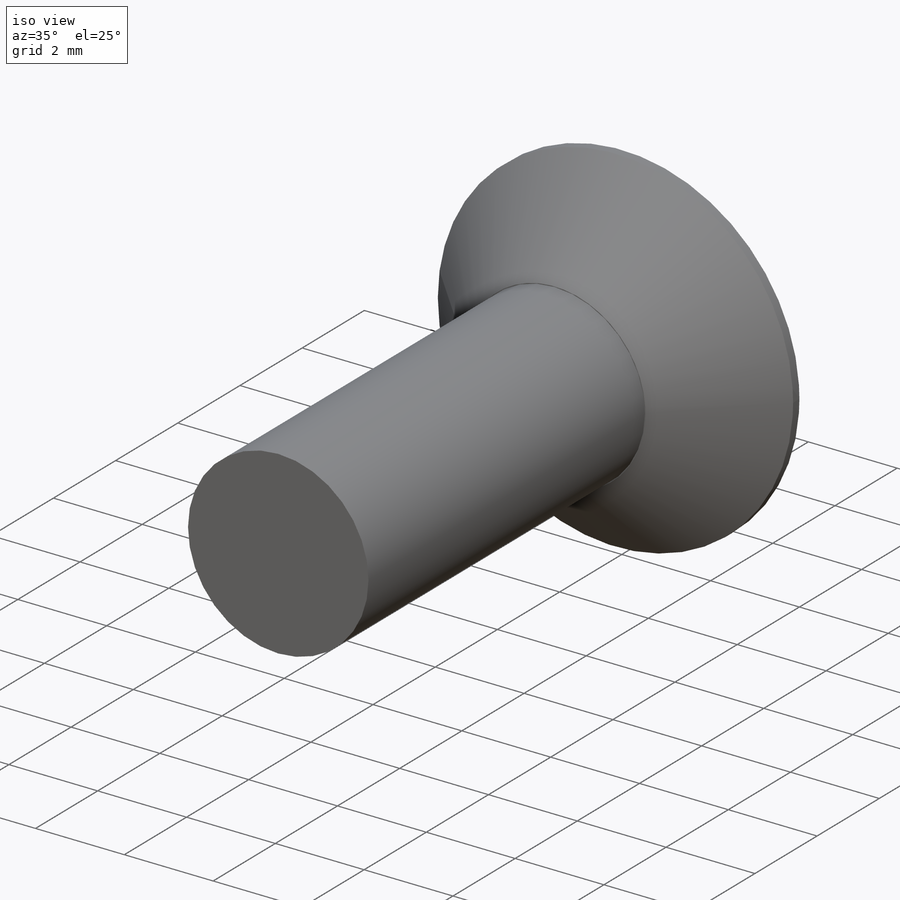
[diagram: iso view]
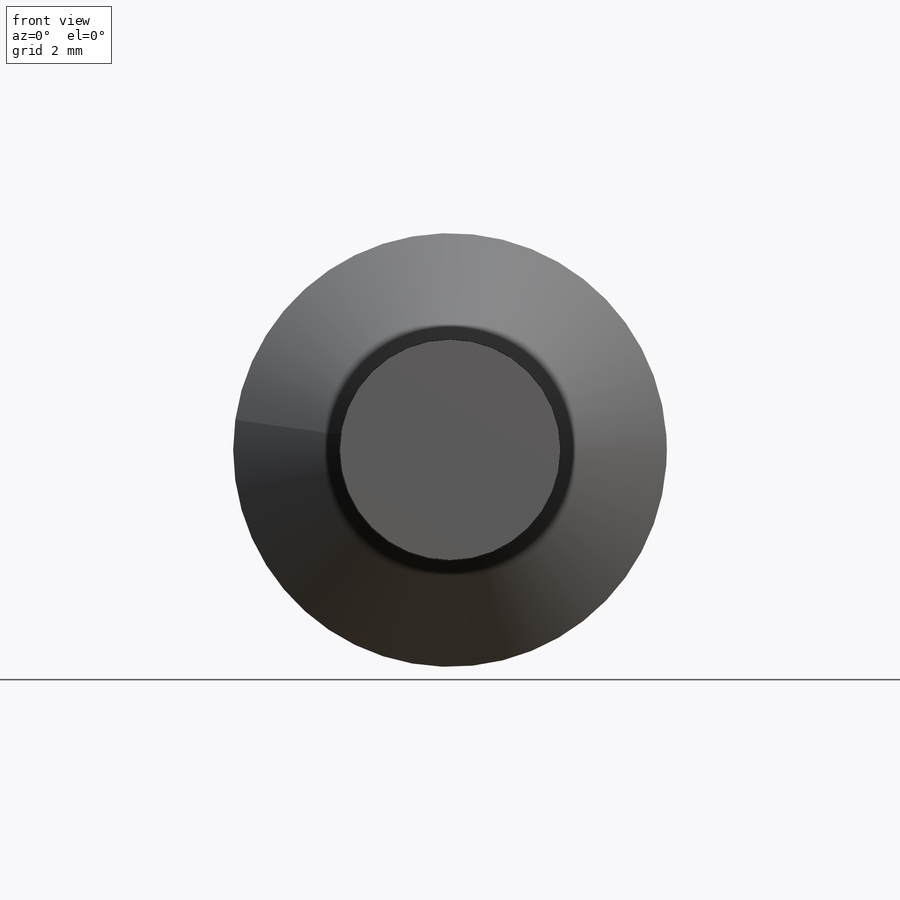
[diagram: front view]
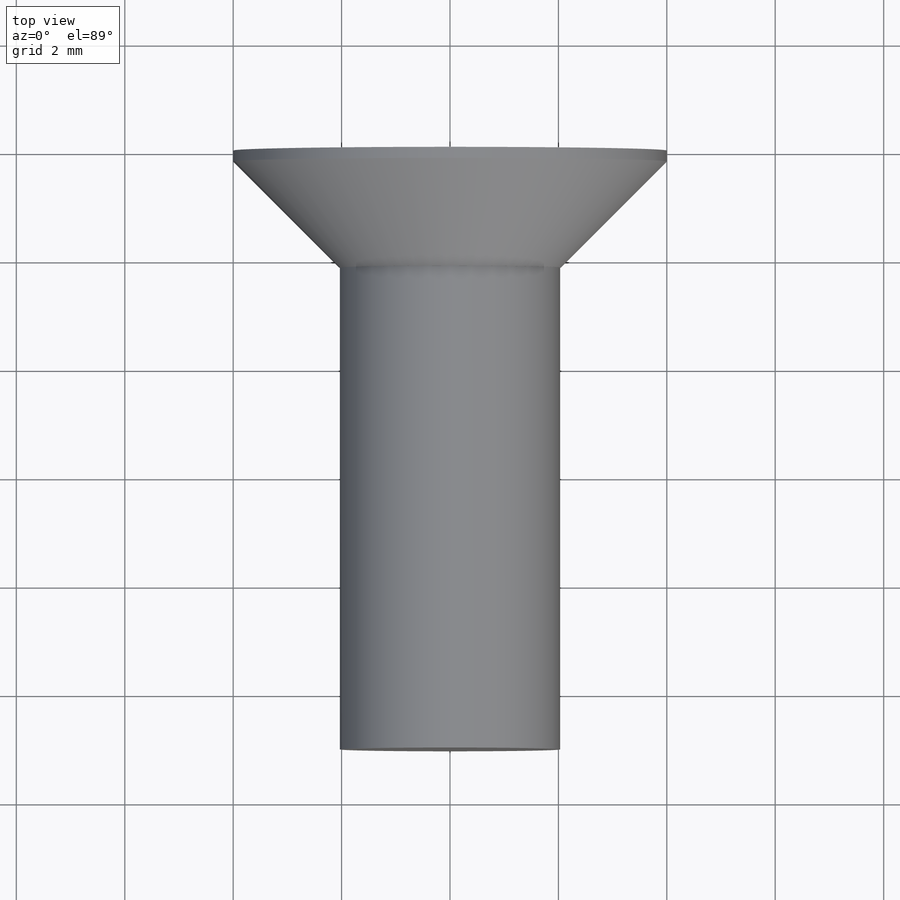
[diagram: top view]
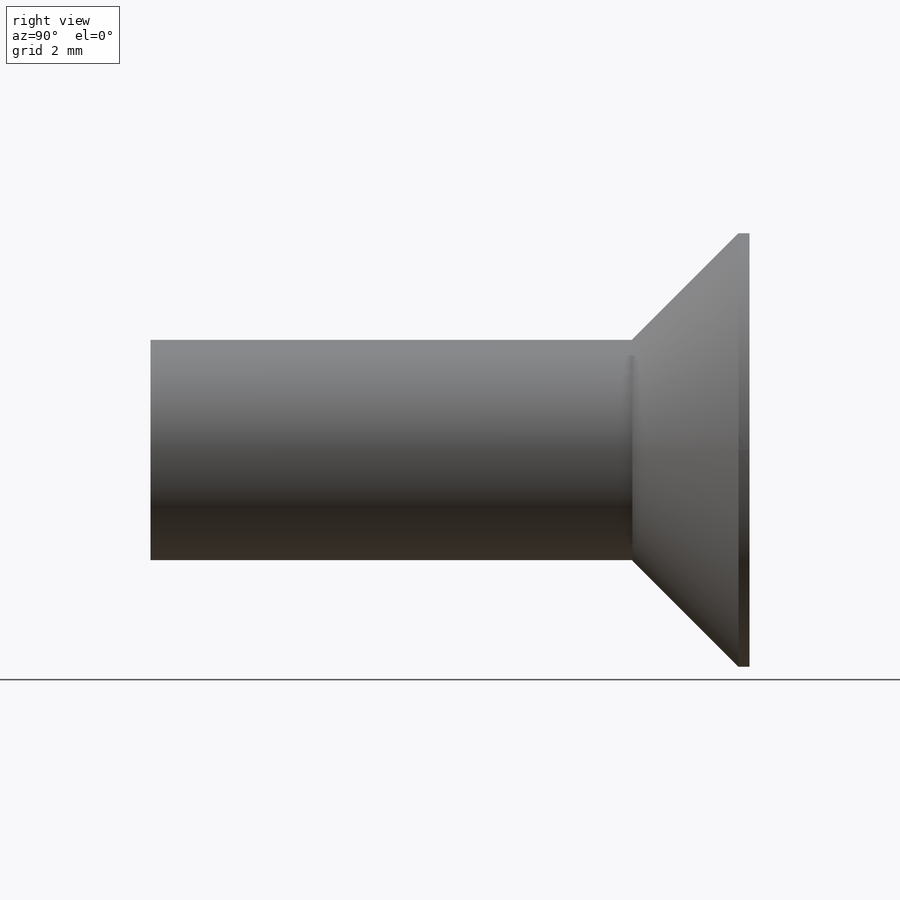
[diagram: right view]
SOLIDWORKS PART (.sldprt)
format: sldprt  version: not decoded by parser v0  size: 173,056 bytes
history: native  units: mm
features: sketch x3, extrude x2, material x1, cut_extrude x1, pattern_circular x1, chamfer x1 (+16 scaffold rows collapsed)
feature tree (25):
  scaffold x16  (default folders/planes/origin — collapsed)
  material  "Material <not specified>"
  sketch  "Sketch1"  dims[D1=8.001mm]
  extrude  "Extrude1"  Depth=2.159mm
  sketch  "Sketch2"  dims[D1=~1.722633mm]
  extrude  "Extrude2"  Depth=8.89mm
  sketch  "Sketch3"  dims[D1=5.08mm]
  cut_extrude  "Extrude3"  Depth=1.016mm
  pattern_circular  "CirPattern1"  Count=2 Angle=90deg
  chamfer  "Chamfer1"  Distance=1.9558mm Angle=45deg
decode coverage: 8 of 8 modeling features carry decoded parameters
note: ~ marks probable driven/reference dimensions
note: suppression state not decoded; provenance and decode notes live in map.json
